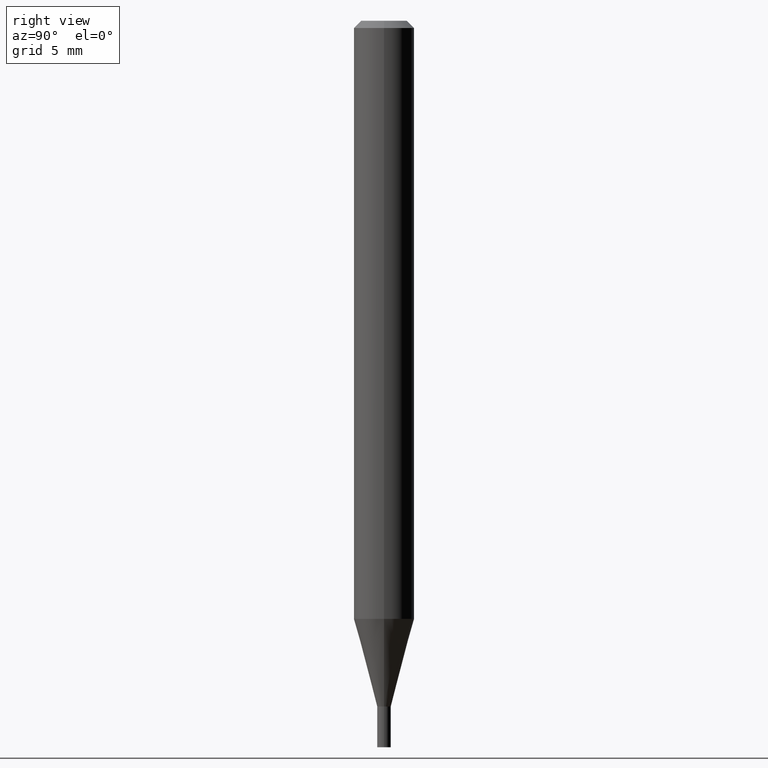
[diagram: clean part render]
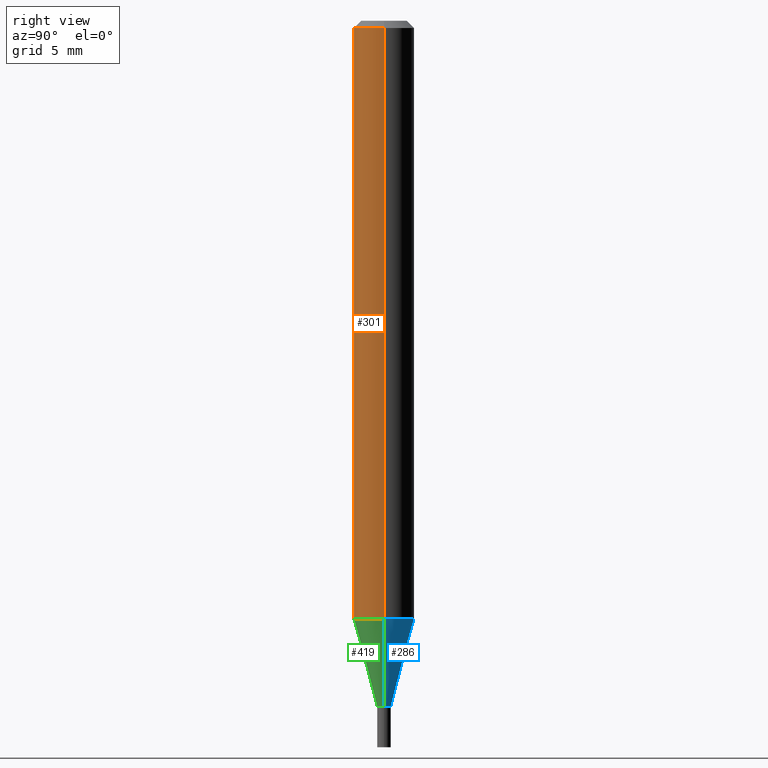
[diagram: same view with three faces highlighted in distinct colors, each labeled with its STEP entity id]
A machine part, right view with three faces highlighted in distinct colors.
Their STEP definitions:

[orange] entity #301 — the highlighted cylindrical surface (edge-blend (fillet) strip) has radius 1.5875 mm, axis along (-0, 0, 1).
#3 = VERTEX_POINT ( 'NONE', #224 ) ;
#30 = CARTESIAN_POINT ( 'NONE',  ( 0.000000000000000000, 0.000000000000000000, 0.000000000000000000 ) ) ;
#31 = DIRECTION ( 'NONE',  ( -2.445468806185136597E-29, 3.491481338843145583E-15, 1.000000000000000000 ) ) ;
#50 = ORIENTED_EDGE ( 'NONE', *, *, #394, .T. ) ;
#59 = CARTESIAN_POINT ( 'NONE',  ( -0.06250000000000000000, -1.738078833648857034E-15, -0.01499999999999999944 ) ) ;
#60 = CARTESIAN_POINT ( 'NONE',  ( 0.06250000000000000000, -4.748399034270584284E-15, -1.234995535832908775 ) ) ;
#63 = VERTEX_POINT ( 'NONE', #373 ) ;
#99 = CIRCLE ( 'NONE', #321, 0.06250000000000000000 ) ;
#100 = DIRECTION ( 'NONE',  ( -2.445468806185136877E-29, 3.491481338843145188E-15, 1.000000000000000000 ) ) ;
#105 = CARTESIAN_POINT ( 'NONE',  ( -0.06250000000000000000, 4.440892098500626162E-16, -3.074334431409316114E-30 ) ) ;
#110 = VERTEX_POINT ( 'NONE', #60 ) ;
#140 = VECTOR ( 'NONE', #100, 39.37007874015748143 ) ;
#156 = DIRECTION ( 'NONE',  ( 1.000000000000000000, -6.982962677686262766E-15, 0.000000000000000000 ) ) ;
#158 = CARTESIAN_POINT ( 'NONE',  ( 3.020143058657276543E-29, -4.311963866915191826E-15, -1.234995535832908775 ) ) ;
#167 = AXIS2_PLACEMENT_3D ( 'NONE', #30, #458, #365 ) ;
#171 = ORIENTED_EDGE ( 'NONE', *, *, #264, .F. ) ;
#179 = EDGE_CURVE ( 'NONE', #433, #63, #202, .T. ) ;
#187 = LINE ( 'NONE', #105, #361 ) ;
#202 = CIRCLE ( 'NONE', #313, 0.06250000000000000000 ) ;
#218 = EDGE_LOOP ( 'NONE', ( #171, #318, #50, #328 ) ) ;
#224 = CARTESIAN_POINT ( 'NONE',  ( -0.06250000000000000000, -3.867874657065129999E-15, -1.234995535832908775 ) ) ;
#264 = EDGE_CURVE ( 'NONE', #3, #433, #187, .T. ) ;
#269 = CYLINDRICAL_SURFACE ( 'NONE', #167, 0.06250000000000000000 ) ;
#273 = LINE ( 'NONE', #385, #140 ) ;
#301 = ADVANCED_FACE ( 'NONE', ( #348 ), #269, .T. ) ;
#313 = AXIS2_PLACEMENT_3D ( 'NONE', #344, #31, #314 ) ;
#314 = DIRECTION ( 'NONE',  ( 1.000000000000000000, -6.982962677686266711E-15, 0.000000000000000000 ) ) ;
#318 = ORIENTED_EDGE ( 'NONE', *, *, #436, .T. ) ;
#321 = AXIS2_PLACEMENT_3D ( 'NONE', #158, #413, #156 ) ;
#328 = ORIENTED_EDGE ( 'NONE', *, *, #179, .F. ) ;
#337 = DIRECTION ( 'NONE',  ( -2.445468806185136877E-29, 3.491481338843145188E-15, 1.000000000000000000 ) ) ;
#344 = CARTESIAN_POINT ( 'NONE',  ( 3.668203209277705088E-31, -5.237222008264718399E-17, -0.01499999999999999944 ) ) ;
#348 = FACE_OUTER_BOUND ( 'NONE', #218, .T. ) ;
#361 = VECTOR ( 'NONE', #337, 39.37007874015748143 ) ;
#365 = DIRECTION ( 'NONE',  ( 1.000000000000000000, -6.982962677686266711E-15, 4.876176775795935793E-29 ) ) ;
#373 = CARTESIAN_POINT ( 'NONE',  ( 0.06250000000000000000, -4.888073874380388472E-16, -0.01499999999999999944 ) ) ;
#385 = CARTESIAN_POINT ( 'NONE',  ( 0.06250000000000000000, -4.364351673553916694E-16, 3.047610484872459871E-30 ) ) ;
#394 = EDGE_CURVE ( 'NONE', #110, #63, #273, .T. ) ;
#413 = DIRECTION ( 'NONE',  ( -2.445468806185136597E-29, 3.491481338843145583E-15, 1.000000000000000000 ) ) ;
#433 = VERTEX_POINT ( 'NONE', #59 ) ;
#436 = EDGE_CURVE ( 'NONE', #3, #110, #99, .T. ) ;
#458 = DIRECTION ( 'NONE',  ( -2.445468806185136597E-29, 3.491481338843145583E-15, 1.000000000000000000 ) ) ;

[blue] entity #286 — the highlighted conical surface has half-angle 15 deg.
#3 = VERTEX_POINT ( 'NONE', #224 ) ;
#25 = DIRECTION ( 'NONE',  ( -0.2588190451025214611, 5.211531920934551042E-15, 0.9659258262890682012 ) ) ;
#41 = VECTOR ( 'NONE', #25, 39.37007874015747433 ) ;
#42 = FACE_OUTER_BOUND ( 'NONE', #345, .T. ) ;
#60 = CARTESIAN_POINT ( 'NONE',  ( 0.06250000000000000000, -4.748399034270584284E-15, -1.234995535832908775 ) ) ;
#70 = CONICAL_SURFACE ( 'NONE', #139, 0.01399999999999965335, 0.2617993877991501295 ) ;
#72 = DIRECTION ( 'NONE',  ( 0.2588190451025214611, 1.565188264969621573E-15, 0.9659258262890682012 ) ) ;
#86 = DIRECTION ( 'NONE',  ( -2.445468806185136597E-29, 3.491481338843145583E-15, 1.000000000000000000 ) ) ;
#92 = VERTEX_POINT ( 'NONE', #120 ) ;
#109 = AXIS2_PLACEMENT_3D ( 'NONE', #184, #86, #369 ) ;
#110 = VERTEX_POINT ( 'NONE', #60 ) ;
#114 = ORIENTED_EDGE ( 'NONE', *, *, #357, .T. ) ;
#120 = CARTESIAN_POINT ( 'NONE',  ( -0.01399999999999965335, -4.356168124930306786E-15, -1.416000000000000147 ) ) ;
#139 = AXIS2_PLACEMENT_3D ( 'NONE', #237, #386, #311 ) ;
#168 = AXIS2_PLACEMENT_3D ( 'NONE', #225, #233, #268 ) ;
#172 = ORIENTED_EDGE ( 'NONE', *, *, #343, .T. ) ;
#184 = CARTESIAN_POINT ( 'NONE',  ( 3.020143058657276543E-29, -4.311963866915191826E-15, -1.234995535832908775 ) ) ;
#213 = EDGE_CURVE ( 'NONE', #245, #110, #392, .T. ) ;
#224 = CARTESIAN_POINT ( 'NONE',  ( -0.06250000000000000000, -3.867874657065129999E-15, -1.234995535832908775 ) ) ;
#225 = CARTESIAN_POINT ( 'NONE',  ( 3.462783829558154044E-29, -4.943937575801894533E-15, -1.416000000000000147 ) ) ;
#233 = DIRECTION ( 'NONE',  ( -2.445468806185136597E-29, 3.491481338843145583E-15, 1.000000000000000000 ) ) ;
#234 = EDGE_CURVE ( 'NONE', #110, #3, #291, .T. ) ;
#236 = CIRCLE ( 'NONE', #168, 0.01399999999999965335 ) ;
#237 = CARTESIAN_POINT ( 'NONE',  ( 3.462783829558154044E-29, -4.943937575801894533E-15, -1.416000000000000147 ) ) ;
#238 = LINE ( 'NONE', #420, #41 ) ;
#245 = VERTEX_POINT ( 'NONE', #350 ) ;
#256 = ORIENTED_EDGE ( 'NONE', *, *, #213, .F. ) ;
#268 = DIRECTION ( 'NONE',  ( 1.000000000000000000, -6.982962677686298265E-15, 0.000000000000000000 ) ) ;
#286 = ADVANCED_FACE ( 'NONE', ( #42 ), #70, .T. ) ;
#291 = CIRCLE ( 'NONE', #109, 0.06250000000000000000 ) ;
#311 = DIRECTION ( 'NONE',  ( 1.000000000000000000, -6.982962677686298265E-15, 0.000000000000000000 ) ) ;
#325 = ORIENTED_EDGE ( 'NONE', *, *, #234, .F. ) ;
#343 = EDGE_CURVE ( 'NONE', #92, #3, #238, .T. ) ;
#345 = EDGE_LOOP ( 'NONE', ( #114, #172, #325, #256 ) ) ;
#350 = CARTESIAN_POINT ( 'NONE',  ( 0.01399999999999965335, -5.041699053289500311E-15, -1.416000000000000147 ) ) ;
#357 = EDGE_CURVE ( 'NONE', #245, #92, #236, .T. ) ;
#358 = CARTESIAN_POINT ( 'NONE',  ( 0.01399999999999965335, -5.041699053289500311E-15, -1.416000000000000147 ) ) ;
#369 = DIRECTION ( 'NONE',  ( 1.000000000000000000, -6.982962677686262766E-15, 0.000000000000000000 ) ) ;
#386 = DIRECTION ( 'NONE',  ( -2.445468806185136597E-29, 3.491481338843145583E-15, 1.000000000000000000 ) ) ;
#392 = LINE ( 'NONE', #358, #405 ) ;
#405 = VECTOR ( 'NONE', #72, 39.37007874015747433 ) ;
#420 = CARTESIAN_POINT ( 'NONE',  ( -0.01399999999999965335, -4.844461592795482785E-15, -1.416000000000000147 ) ) ;

[green] entity #419 — the highlighted conical surface has half-angle 15 deg.
#3 = VERTEX_POINT ( 'NONE', #224 ) ;
#16 = DIRECTION ( 'NONE',  ( 1.000000000000000000, -6.982962677686298265E-15, 0.000000000000000000 ) ) ;
#25 = DIRECTION ( 'NONE',  ( -0.2588190451025214611, 5.211531920934551042E-15, 0.9659258262890682012 ) ) ;
#32 = AXIS2_PLACEMENT_3D ( 'NONE', #151, #253, #441 ) ;
#41 = VECTOR ( 'NONE', #25, 39.37007874015747433 ) ;
#60 = CARTESIAN_POINT ( 'NONE',  ( 0.06250000000000000000, -4.748399034270584284E-15, -1.234995535832908775 ) ) ;
#72 = DIRECTION ( 'NONE',  ( 0.2588190451025214611, 1.565188264969621573E-15, 0.9659258262890682012 ) ) ;
#92 = VERTEX_POINT ( 'NONE', #120 ) ;
#99 = CIRCLE ( 'NONE', #321, 0.06250000000000000000 ) ;
#101 = ORIENTED_EDGE ( 'NONE', *, *, #436, .F. ) ;
#102 = EDGE_LOOP ( 'NONE', ( #107, #397, #138, #101 ) ) ;
#107 = ORIENTED_EDGE ( 'NONE', *, *, #343, .F. ) ;
#110 = VERTEX_POINT ( 'NONE', #60 ) ;
#120 = CARTESIAN_POINT ( 'NONE',  ( -0.01399999999999965335, -4.356168124930306786E-15, -1.416000000000000147 ) ) ;
#129 = DIRECTION ( 'NONE',  ( -2.445468806185136597E-29, 3.491481338843145583E-15, 1.000000000000000000 ) ) ;
#138 = ORIENTED_EDGE ( 'NONE', *, *, #213, .T. ) ;
#150 = AXIS2_PLACEMENT_3D ( 'NONE', #346, #129, #16 ) ;
#151 = CARTESIAN_POINT ( 'NONE',  ( 3.462783829558154044E-29, -4.943937575801894533E-15, -1.416000000000000147 ) ) ;
#156 = DIRECTION ( 'NONE',  ( 1.000000000000000000, -6.982962677686262766E-15, 0.000000000000000000 ) ) ;
#158 = CARTESIAN_POINT ( 'NONE',  ( 3.020143058657276543E-29, -4.311963866915191826E-15, -1.234995535832908775 ) ) ;
#192 = CIRCLE ( 'NONE', #32, 0.01399999999999965335 ) ;
#213 = EDGE_CURVE ( 'NONE', #245, #110, #392, .T. ) ;
#224 = CARTESIAN_POINT ( 'NONE',  ( -0.06250000000000000000, -3.867874657065129999E-15, -1.234995535832908775 ) ) ;
#227 = EDGE_CURVE ( 'NONE', #92, #245, #192, .T. ) ;
#238 = LINE ( 'NONE', #420, #41 ) ;
#245 = VERTEX_POINT ( 'NONE', #350 ) ;
#253 = DIRECTION ( 'NONE',  ( -2.445468806185136597E-29, 3.491481338843145583E-15, 1.000000000000000000 ) ) ;
#280 = CONICAL_SURFACE ( 'NONE', #150, 0.01399999999999965335, 0.2617993877991501295 ) ;
#321 = AXIS2_PLACEMENT_3D ( 'NONE', #158, #413, #156 ) ;
#343 = EDGE_CURVE ( 'NONE', #92, #3, #238, .T. ) ;
#346 = CARTESIAN_POINT ( 'NONE',  ( 3.462783829558154044E-29, -4.943937575801894533E-15, -1.416000000000000147 ) ) ;
#350 = CARTESIAN_POINT ( 'NONE',  ( 0.01399999999999965335, -5.041699053289500311E-15, -1.416000000000000147 ) ) ;
#358 = CARTESIAN_POINT ( 'NONE',  ( 0.01399999999999965335, -5.041699053289500311E-15, -1.416000000000000147 ) ) ;
#382 = FACE_OUTER_BOUND ( 'NONE', #102, .T. ) ;
#392 = LINE ( 'NONE', #358, #405 ) ;
#397 = ORIENTED_EDGE ( 'NONE', *, *, #227, .T. ) ;
#405 = VECTOR ( 'NONE', #72, 39.37007874015747433 ) ;
#413 = DIRECTION ( 'NONE',  ( -2.445468806185136597E-29, 3.491481338843145583E-15, 1.000000000000000000 ) ) ;
#419 = ADVANCED_FACE ( 'NONE', ( #382 ), #280, .T. ) ;
#420 = CARTESIAN_POINT ( 'NONE',  ( -0.01399999999999965335, -4.844461592795482785E-15, -1.416000000000000147 ) ) ;
#436 = EDGE_CURVE ( 'NONE', #3, #110, #99, .T. ) ;
#441 = DIRECTION ( 'NONE',  ( 1.000000000000000000, -6.982962677686298265E-15, 0.000000000000000000 ) ) ;